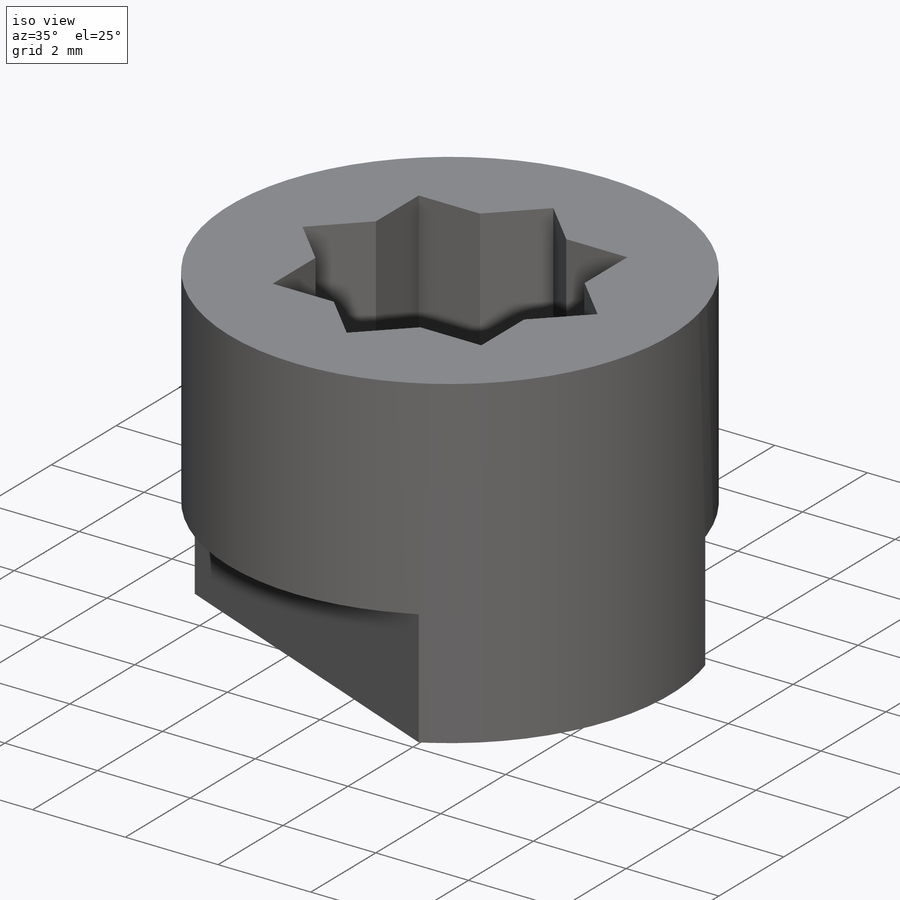
[diagram: iso view]
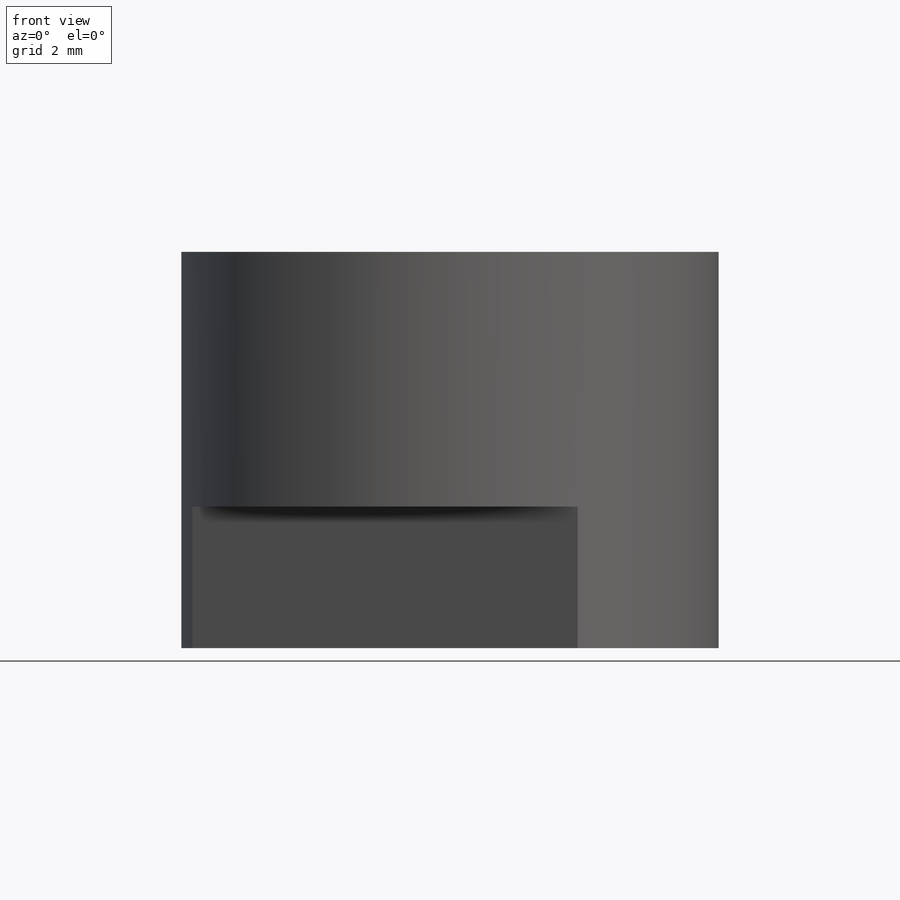
[diagram: front view]
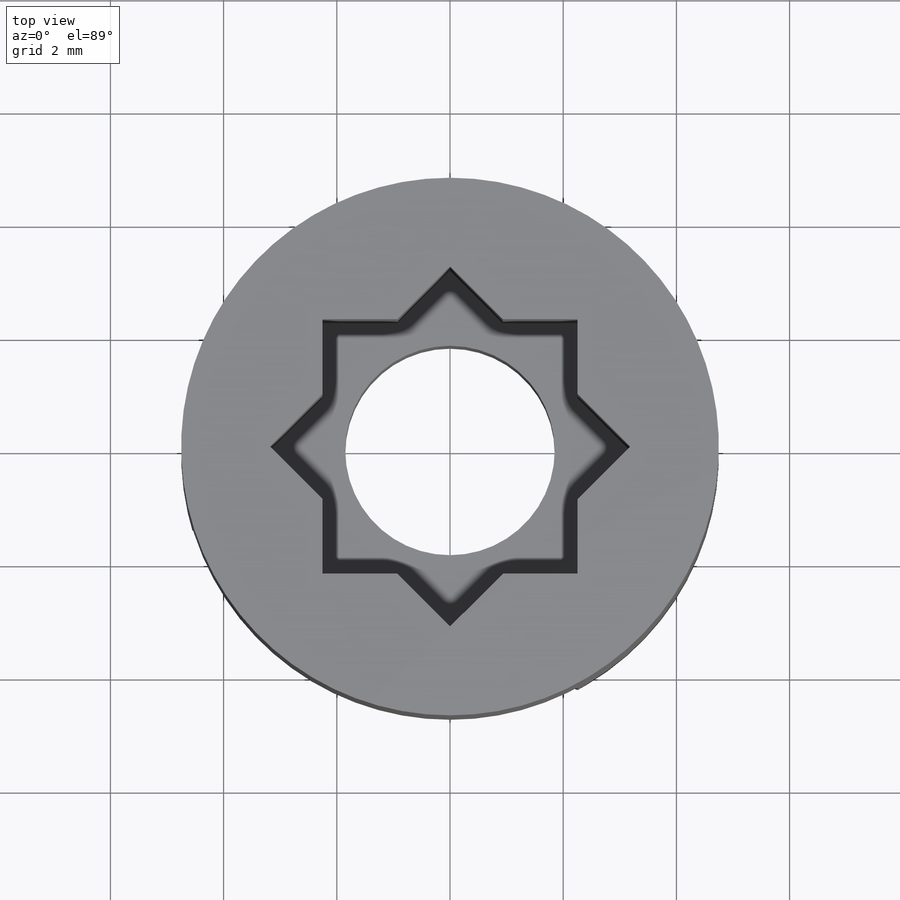
[diagram: top view]
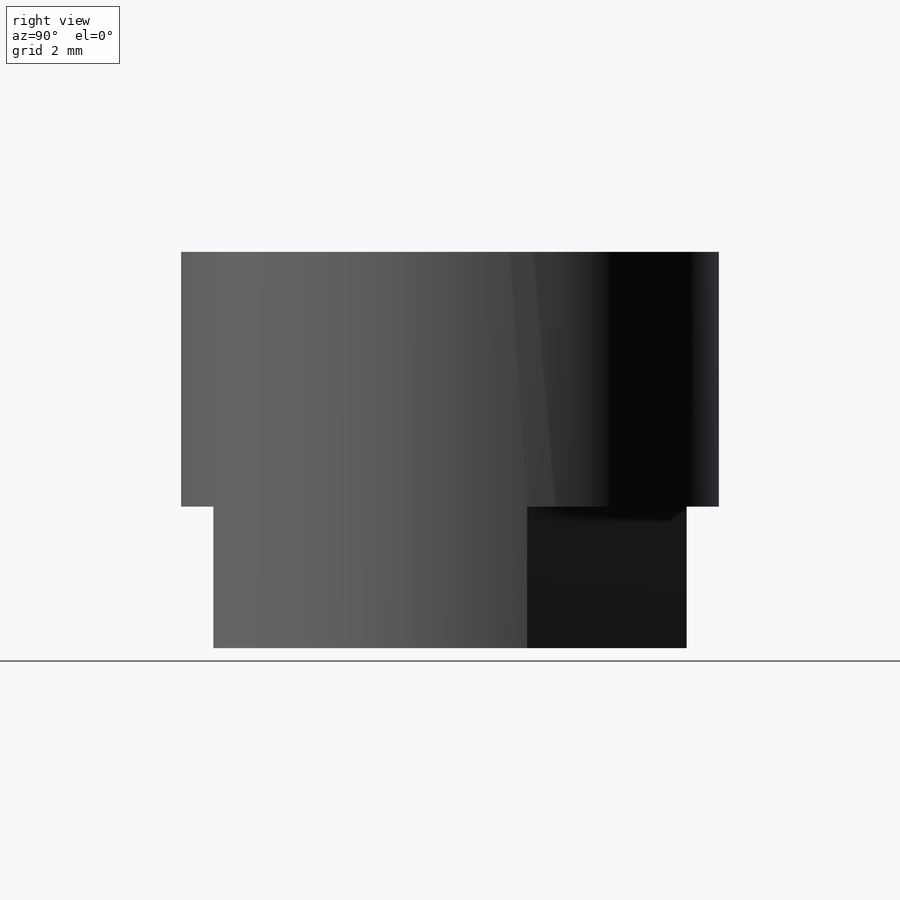
[diagram: right view]
SOLIDWORKS PART (.sldprt)
format: sldprt  version: not decoded by parser v0  size: 169,984 bytes
history: native  units: mm
features: sketch x5, cut_extrude x4, plane x3, material x1, extrude x1 (+13 scaffold rows collapsed)
feature tree (27):
  scaffold x13  (default folders/planes/origin — collapsed)
  material  "ПК/АБС"
  plane  "Спереди"
  plane  "Сверху"
  plane  "Справа"
  sketch  "Эскиз1"  dims[D1=9.5mm]
  extrude  "Бобышка-Вытянуть1"  Depth=7mm
  sketch  "Эскиз2"  dims[D1=4.5mm]
  cut_extrude  "Вырез-Вытянуть1"  Depth=4mm
  sketch  "Эскиз3"  dims[D1=3.7mm]
  cut_extrude  "Вырез-Вытянуть2"  [1 undecoded]
  sketch  "Эскиз4"  dims[c1.D2=5.0mm c1.D1=6.0mm c1.D3=~6.822617mm c2.D3=22.5deg]
  cut_extrude  "Вырез-Вытянуть4"  Depth=2mm
  cut_extrude  "Вырез-Вытянуть7"  [1 undecoded]
  sketch  "Эскиз4<3>"  dims[D1=4.5mm]
decode coverage: 8 of 10 modeling features carry decoded parameters
note: ~ marks probable driven/reference dimensions
note: 2 parameter values undecoded
note: suppression state not decoded; provenance and decode notes live in map.json
